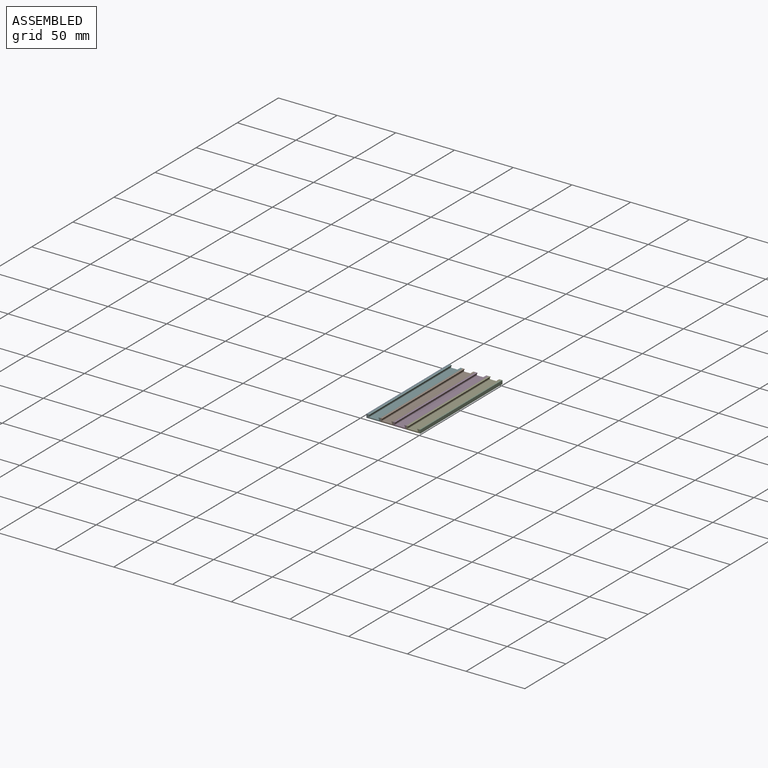
[diagram: assembled view]
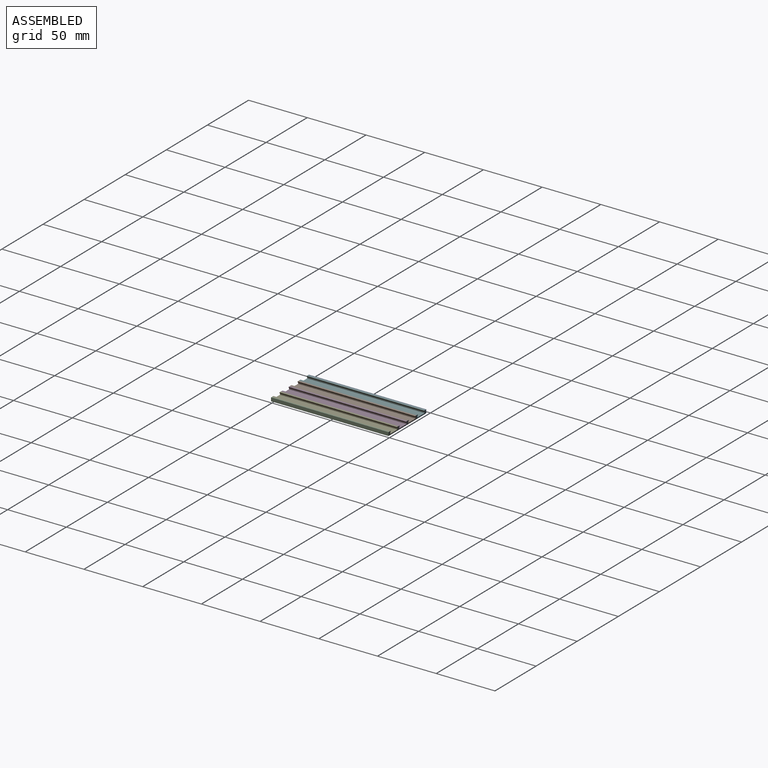
[diagram: assembled view, second angle]
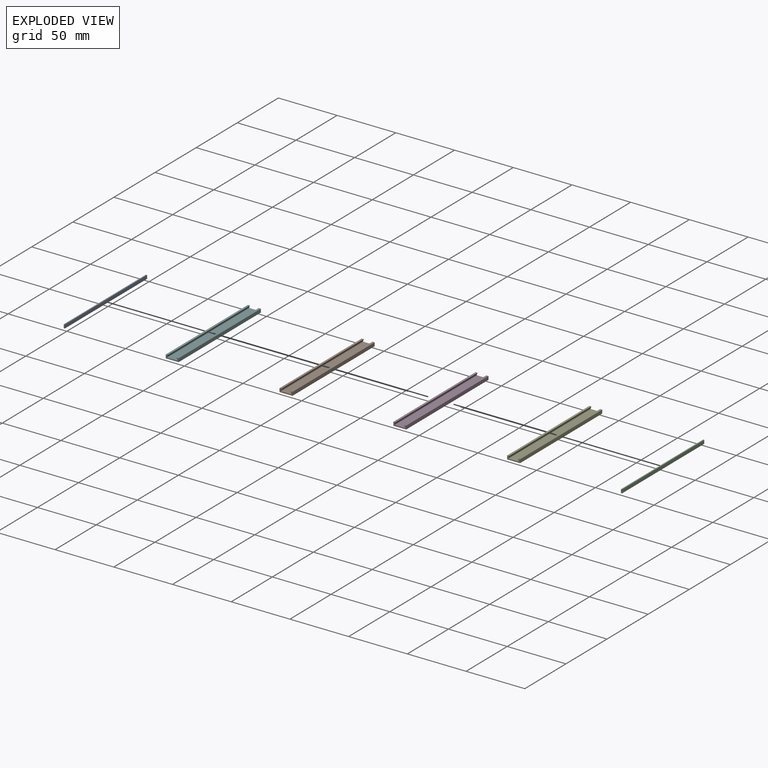
[diagram: exploded view]
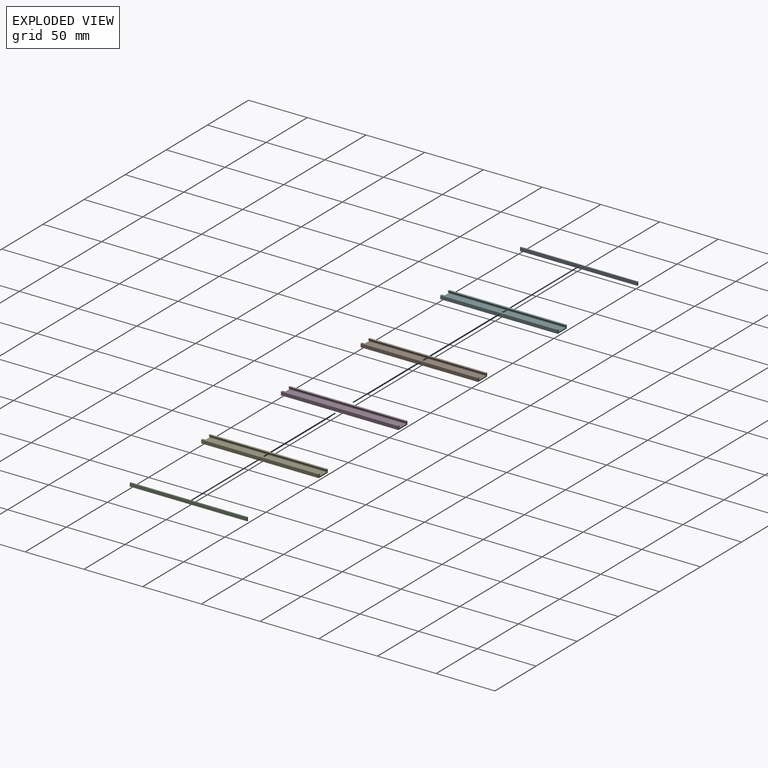
[diagram: exploded view, second angle]
ASSEMBLY  parts=6 mates=5
PART A: 6 faces, bbox 1x100x3 mm
  f0: plane 100x3mm, normal (-1,0,0), area 300mm2, adj f1,f3,f4,f5
  f1: plane 100x1mm, normal (0,0,-1), area 100mm2, adj f0,f2,f4,f5
  f2: plane 100x3mm, normal (1,0,0), area 300mm2, adj f1,f3,f4,f5
  f3: plane 100x1mm, normal (0,0,1), area 100mm2, adj f0,f2,f4,f5
  f4: plane 3x1mm, normal (0,-1,0), area 3mm2, adj f0,f1,f2,f3
  f5: plane 3x1mm, normal (0,1,0), area 3mm2, adj f0,f1,f2,f3
PART B: 12 faces, bbox 11x100x3 mm
  f0: plane 100x3mm, normal (-1,0,0), area 300mm2, adj f1,f9,f10,f11
  f1: plane 100x11mm, normal (0,0,-1), area 1100mm2, adj f0,f2,f10,f11
  f2: plane 100x3mm, normal (1,0,0), area 300mm2, adj f1,f3,f10,f11
  f3: plane 100x1.84mm, normal (0,0,1), area 184.3mm2, adj f2,f4,f10,f11
  f4: plane 100x1.2mm, normal (-0.87,0,-0.5), area 138.6mm2, adj f3,f5,f10,f11
  f5: plane 100x0.9mm, normal (-1,0,0), area 90mm2, adj f4,f6,f10,f11
  f6: plane 100x8.7mm, normal (0,0,1), area 870mm2, adj f5,f7,f10,f11
  f7: plane 100x0.9mm, normal (1,0,0), area 90mm2, adj f6,f8,f10,f11
  f8: plane 100x1.2mm, normal (0.87,0,-0.5), area 138.6mm2, adj f7,f9,f10,f11
  f9: plane 100x1.84mm, normal (0,0,1), area 184.3mm2, adj f0,f8,f10,f11
  f10: plane 11x3mm, normal (0,-1,0), area 15.6mm2, adj f0,f1,f2,f3,f4,f5,f6,f7
  f11: plane 11x3mm, normal (0,1,0), area 15.6mm2, adj f0,f1,f2,f3,f4,f5,f6,f7
PART C: same geometry as A
PART D: same geometry as B
PART E: same geometry as B
PART F: same geometry as B
PLACE A t=(-45,0,0)mm
PLACE B t=(-33,0,0)mm
PLACE C at identity
PLACE D t=(-22,0,0)mm
PLACE E t=(-11,0,0)mm
PLACE F t=(-44,0,0)mm
MATE fastened E.f2 <-> C.f0  axis (1,0,0) through (0,-100,0)mm
MATE fastened A.f2 <-> F.f0  axis (1,0,0) through (-44,-100,0)mm
MATE fastened D.f0 <-> B.f2  axis (-1,0,0) through (-22,-100,0)mm
MATE fastened F.f2 <-> B.f0  axis (1,0,0) through (-33,-100,0)mm
MATE fastened D.f2 <-> E.f0  axis (1,0,0) through (-11,-100,0)mm
